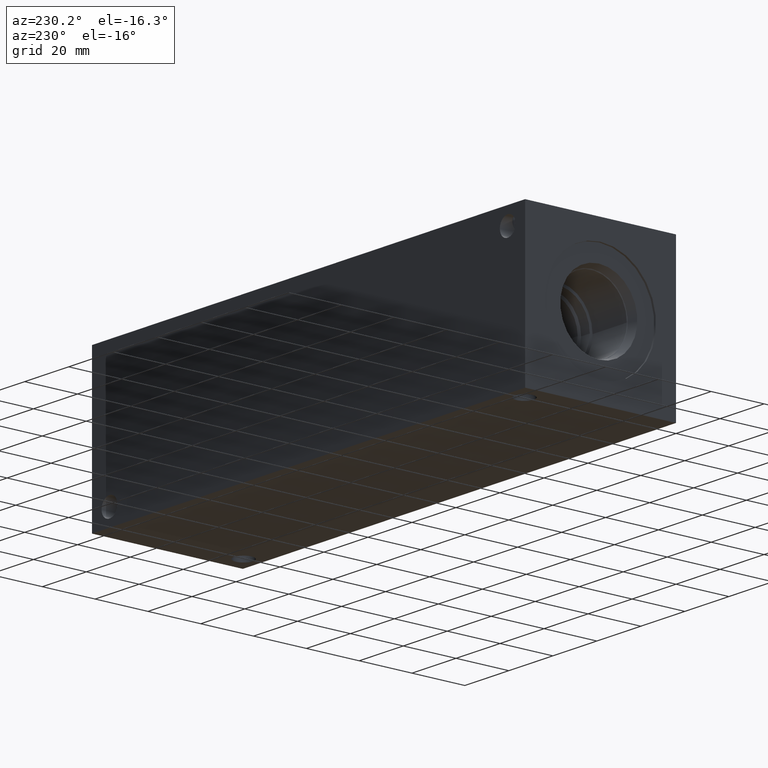
[diagram: clean part render]
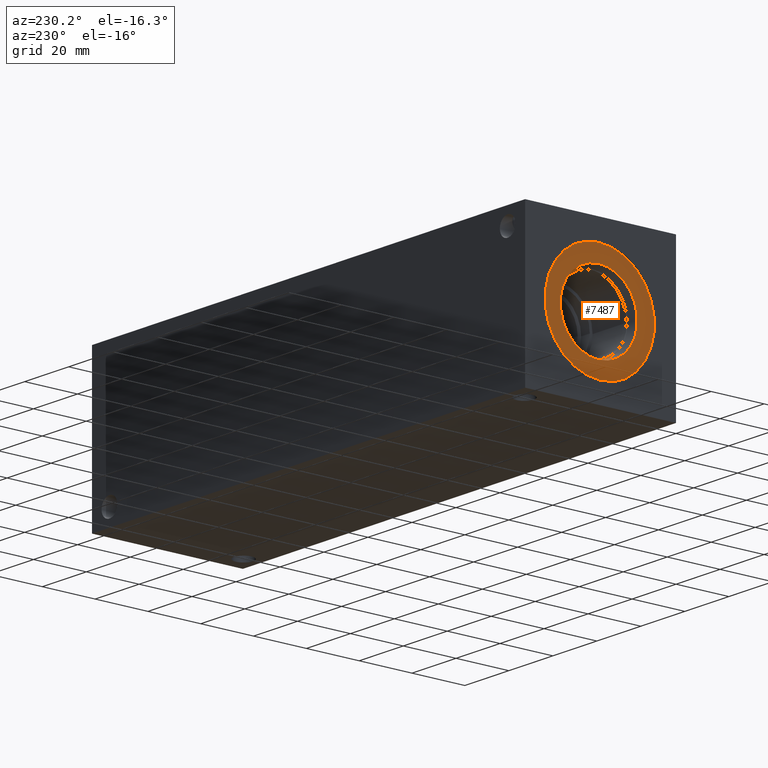
[diagram: same view with one face highlighted and labeled with its STEP entity id]
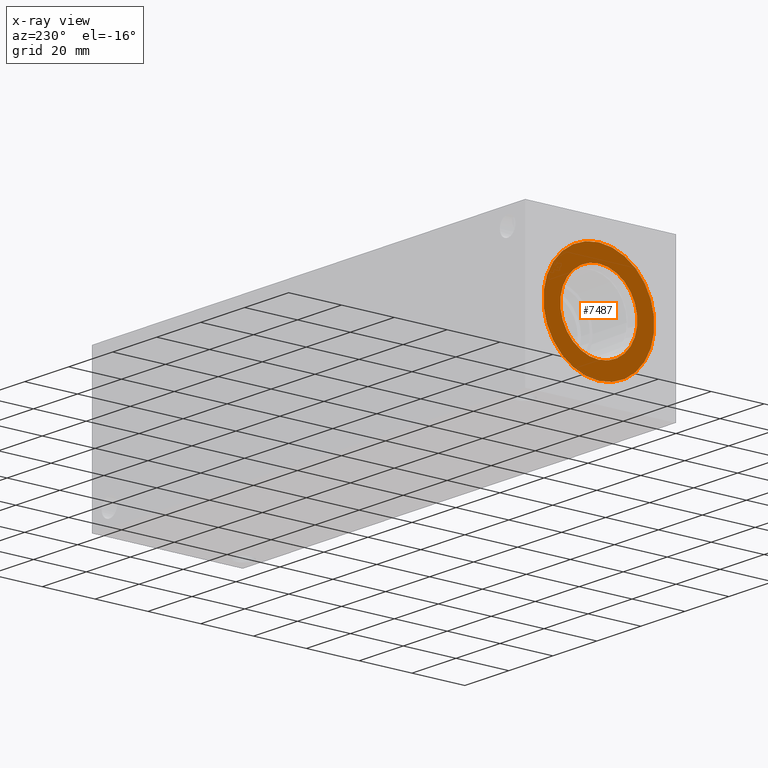
[diagram: x-ray of the same camera — body ghosted, the highlighted face saturated]
A machine part, auxiliary view. The second image highlights one B-rep face of the part: STEP entity #7487.
The next image is the same camera in x-ray: the body ghosted, the highlighted face saturated — about 0% of this face is hidden behind the body in this view.
In plain terms, the highlighted planar face has unit normal (1, 0, 0).
Its self-contained STEP definition (entity closure, byte-faithful):
#101=CIRCLE('',#7800,21.0185);
#102=CIRCLE('',#7801,21.0185);
#103=CIRCLE('',#7803,14.5923);
#104=CIRCLE('',#7804,14.5923);
#208=FACE_BOUND('',#1188,.T.);
#422=PLANE('',#7802);
#769=FACE_OUTER_BOUND('',#1187,.T.);
#1187=EDGE_LOOP('',(#6455,#6456));
#1188=EDGE_LOOP('',(#6457,#6458));
#3498=VERTEX_POINT('',#12848);
#3499=VERTEX_POINT('',#12850);
#3500=VERTEX_POINT('',#12854);
#3501=VERTEX_POINT('',#12855);
#4508=EDGE_CURVE('',#3498,#3499,#101,.T.);
#4509=EDGE_CURVE('',#3499,#3498,#102,.T.);
#4510=EDGE_CURVE('',#3500,#3501,#103,.T.);
#4511=EDGE_CURVE('',#3501,#3500,#104,.T.);
#6455=ORIENTED_EDGE('',*,*,#4509,.F.);
#6456=ORIENTED_EDGE('',*,*,#4508,.F.);
#6457=ORIENTED_EDGE('',*,*,#4510,.T.);
#6458=ORIENTED_EDGE('',*,*,#4511,.T.);
#7487=ADVANCED_FACE('',(#769,#208),#422,.F.);
#7800=AXIS2_PLACEMENT_3D('',#12851,#9061,#9062);
#7801=AXIS2_PLACEMENT_3D('',#12852,#9063,#9064);
#7802=AXIS2_PLACEMENT_3D('',#12853,#9065,#9066);
#7803=AXIS2_PLACEMENT_3D('',#12856,#9067,#9068);
#7804=AXIS2_PLACEMENT_3D('',#12857,#9069,#9070);
#9061=DIRECTION('center_axis',(1.,0.,0.));
#9062=DIRECTION('ref_axis',(0.,0.,-1.));
#9063=DIRECTION('center_axis',(1.,0.,0.));
#9064=DIRECTION('ref_axis',(0.,0.,-1.));
#9065=DIRECTION('center_axis',(1.,0.,0.));
#9066=DIRECTION('ref_axis',(0.,0.,-1.));
#9067=DIRECTION('center_axis',(1.,0.,0.));
#9068=DIRECTION('ref_axis',(0.,0.,-1.));
#9069=DIRECTION('center_axis',(1.,0.,0.));
#9070=DIRECTION('ref_axis',(0.,0.,-1.));
#12848=CARTESIAN_POINT('',(0.7874,28.575,7.55649999999999));
#12850=CARTESIAN_POINT('',(0.7874,28.575,49.5935));
#12851=CARTESIAN_POINT('Origin',(0.7874,28.575,28.575));
#12852=CARTESIAN_POINT('Origin',(0.7874,28.575,28.575));
#12853=CARTESIAN_POINT('Origin',(0.7874,28.575,43.1673));
#12854=CARTESIAN_POINT('',(0.7874,28.575,43.1673));
#12855=CARTESIAN_POINT('',(0.787399999999998,28.575,13.9827));
#12856=CARTESIAN_POINT('Origin',(0.7874,28.575,28.575));
#12857=CARTESIAN_POINT('Origin',(0.7874,28.575,28.575));